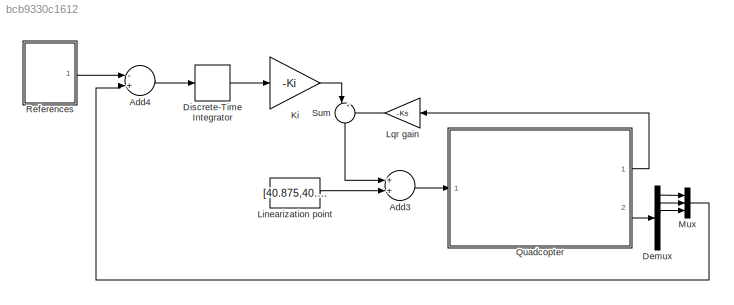
MODEL slx_bcb9330c1612
KIND model
CONFIG AbsTol = auto
CONFIG EnableMultiTasking = on
CONFIG FixedStep = auto
CONFIG MaxStep = auto
CONFIG MinStep = auto
CONFIG RelTol = 1e-6
CONFIG SampleTimeConstraint = Unconstrained
CONFIG Solver = ode45
CONFIG SolverName = ode45
CONFIG StartTime = 0.0
CONFIG StopTime = Tmax
BLOCK [Sum] Add3
  InputSameDT = off
  OutDataTypeStr = Inherit: Inherit via internal rule
  Ports = [2, 1]
  SaturateOnIntegerOverflow = off
BLOCK [Sum] Add4
  InputSameDT = off
  Inputs = -+
  OutDataTypeStr = Inherit: Inherit via internal rule
  Ports = [2, 1]
  SaturateOnIntegerOverflow = off
BLOCK [Demux] Demux
  DisplayOption = bar
  Outputs = 6
  Ports = [1, 6]
BLOCK [DiscreteIntegrator] Discrete-Time Integrator
  ICPrevOutput = DiscIntNeverNeededParam
  ICPrevScaledInput = DiscIntNeverNeededParam
  InitialConditionSetting = Auto
  IntegratorMethod = Accumulation: Forward Euler
  Ports = [1, 1]
  SampleTime = 0.05
  gainval = 1
BLOCK [Gain] Ki 
  Gain = -Ki
  Multiplication = Matrix(K*u)
  OutDataTypeStr = Inherit: Inherit via internal rule
  ParamDataTypeStr = Inherit: Inherit via internal rule
  SaturateOnIntegerOverflow = off
BLOCK [Constant] Linearization point
  SampleTime = 0.05
  Value = [40.875,40.875,40.875,40.875]
BLOCK [Gain] Lqr gain 
  Gain = -Ks
  Multiplication = Matrix(K*u)
  OutDataTypeStr = Inherit: Inherit via internal rule
  ParamDataTypeStr = Inherit: Inherit via internal rule
  SaturateOnIntegerOverflow = off
BLOCK [Mux] Mux
  DisplayOption = bar
  Inputs = 3
  Ports = [3, 1]
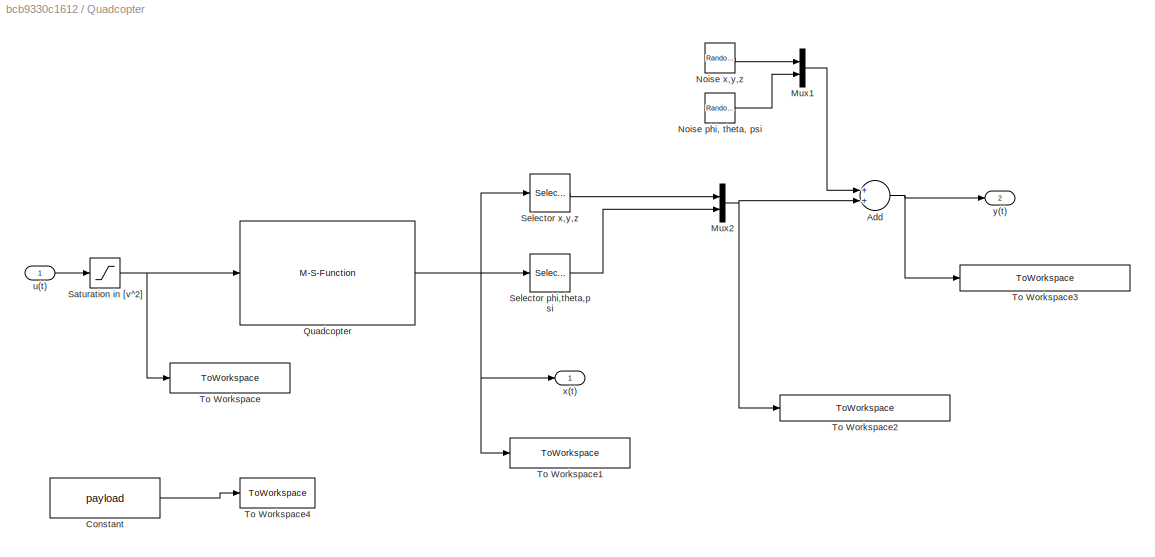
BLOCK [SubSystem] Quadcopter
  Ports = [1, 2]
  RequestExecContextInheritance = off
BLOCK [Sum] Quadcopter/Add
  InputSameDT = off
  OutDataTypeStr = Inherit: Inherit via internal rule
  Ports = [2, 1]
  SaturateOnIntegerOverflow = off
BLOCK [Constant] Quadcopter/Constant
  Value = payload
BLOCK [Mux] Quadcopter/Mux1
  DisplayOption = bar
  Inputs = 2
  Ports = [2, 1]
BLOCK [Mux] Quadcopter/Mux2
  DisplayOption = bar
  Inputs = 2
  Ports = [2, 1]
BLOCK [RandomNumber] Quadcopter/Noise  x,y,z
  SampleTime = 0.05
  Variance = [1 1 1]*(0.005)^2
BLOCK [RandomNumber] Quadcopter/Noise phi, theta, psi
  SampleTime = 0.05
  Variance = [1 1 1]*(0.0087)^2
BLOCK [M-S-Function] Quadcopter/Quadcopter
  FunctionName = quadcopter_sfunction
  Parameters = x0, payload
  Ports = [1, 1]
BLOCK [Saturate] Quadcopter/Saturation in [v^2]
  InputPortMap = u0
  LowerLimit = 0
  Ports = [1, 1]
  UpperLimit = 100
BLOCK [Selector] Quadcopter/Selector phi,theta,psi
  IndexOptions = Index vector (dialog)
  Indices = [7 8 9]
  OutputSizes = 1
  Ports = [1, 1]
BLOCK [Selector] Quadcopter/Selector x,y,z
  IndexOptions = Index vector (dialog)
  Indices = [1 2 3]
  OutputSizes = 1
  Ports = [1, 1]
BLOCK [ToWorkspace] Quadcopter/To Workspace
  MaxDataPoints = inf
  Ports = [1]
  SampleTime = -1
  SaveFormat = Structure With Time
  VariableName = inputs_quadcopter
BLOCK [ToWorkspace] Quadcopter/To Workspace1
  MaxDataPoints = inf
  Ports = [1]
  SampleTime = -1
  SaveFormat = Structure With Time
  VariableName = states_quadcopter
BLOCK [ToWorkspace] Quadcopter/To Workspace2
  MaxDataPoints = inf
  Ports = [1]
  SampleTime = -1
  SaveFormat = Structure With Time
  VariableName = outputs_quadcopter_nonoise
BLOCK [ToWorkspace] Quadcopter/To Workspace3
  MaxDataPoints = inf
  Ports = [1]
  SampleTime = -1
  SaveFormat = Structure With Time
  VariableName = outputs_quadcopter_noise
BLOCK [ToWorkspace] Quadcopter/To Workspace4
  MaxDataPoints = inf
  Ports = [1]
  SampleTime = -1
  VariableName = payload_quadcopter
BLOCK [Inport] Quadcopter/u(t)
  IconDisplay = Port number
BLOCK [Outport] Quadcopter/x(t)
  IconDisplay = Port number
BLOCK [Outport] Quadcopter/y(t)
  IconDisplay = Port number
  Port = 2
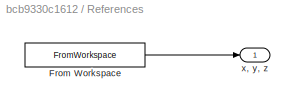
BLOCK [SubSystem] References
  Ports = [0, 1]
  RequestExecContextInheritance = off
BLOCK [FromWorkspace] References/From Workspace
  Interpolate = off
  OutputAfterFinalValue = Holding final value
  SampleTime = 0.1
  VariableName = references
  ZeroCross = on
BLOCK [Outport] References/x, y, z
  IconDisplay = Port number
BLOCK [Sum] Sum
  IconShape = round
  InputSameDT = off
  Inputs = |++
  OutDataTypeStr = Inherit: Inherit via internal rule
  Ports = [2, 1]
  SaturateOnIntegerOverflow = off
LINE Add3:1 -> Quadcopter:1
LINE Add4:1 -> Discrete-Time Integrator:1
LINE Demux:1 -> Mux:1
LINE Demux:2 -> Mux:2
LINE Demux:3 -> Mux:3
LINE Discrete-Time Integrator:1 -> Ki :1
LINE Ki :1 -> Sum:1
LINE Linearization point:1 -> Add3:2
LINE Lqr gain :1 -> Sum:2
LINE Mux:1 -> Add4:2
NET Quadcopter/Add:1 -> Quadcopter/To Workspace3:1, Quadcopter/y(t):1
LINE Quadcopter/Constant:1 -> Quadcopter/To Workspace4:1
LINE Quadcopter/Mux1:1 -> Quadcopter/Add:1
NET Quadcopter/Mux2:1 -> Quadcopter/Add:2, Quadcopter/To Workspace2:1
LINE Quadcopter/Noise  x,y,z:1 -> Quadcopter/Mux1:1
LINE Quadcopter/Noise phi, theta, psi:1 -> Quadcopter/Mux1:2
NET Quadcopter/Quadcopter:1 -> Quadcopter/Selector phi,theta,psi:1, Quadcopter/Selector x,y,z:1, Quadcopter/To Workspace1:1, Quadcopter/x(t):1
NET Quadcopter/Saturation in [v^2]:1 -> Quadcopter/Quadcopter:1, Quadcopter/To Workspace:1
LINE Quadcopter/Selector phi,theta,psi:1 -> Quadcopter/Mux2:2
LINE Quadcopter/Selector x,y,z:1 -> Quadcopter/Mux2:1
LINE Quadcopter/u(t):1 -> Quadcopter/Saturation in [v^2]:1
LINE Quadcopter:1 -> Lqr gain :1
LINE Quadcopter:2 -> Demux:1
LINE References/From Workspace:1 -> References/x, y, z:1
LINE References:1 -> Add4:1
LINE Sum:1 -> Add3:1
note: NET lines group one-source signal fan-out (src -> all destinations, sorted); 1:1 wires keep LINE
